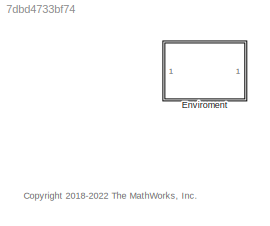
MODEL slx_7dbd4733bf74
KIND library
CONFIG AbsTol = auto
CONFIG EnableMultiTasking = off
CONFIG FixedStep = auto
CONFIG MaxStep = auto
CONFIG MinStep = auto
CONFIG RelTol = 1e-3
CONFIG SampleTimeConstraint = Unconstrained
CONFIG SolverName = VariableStepAuto
CONFIG StartTime = 0.0
CONFIG StopTime = 10.0
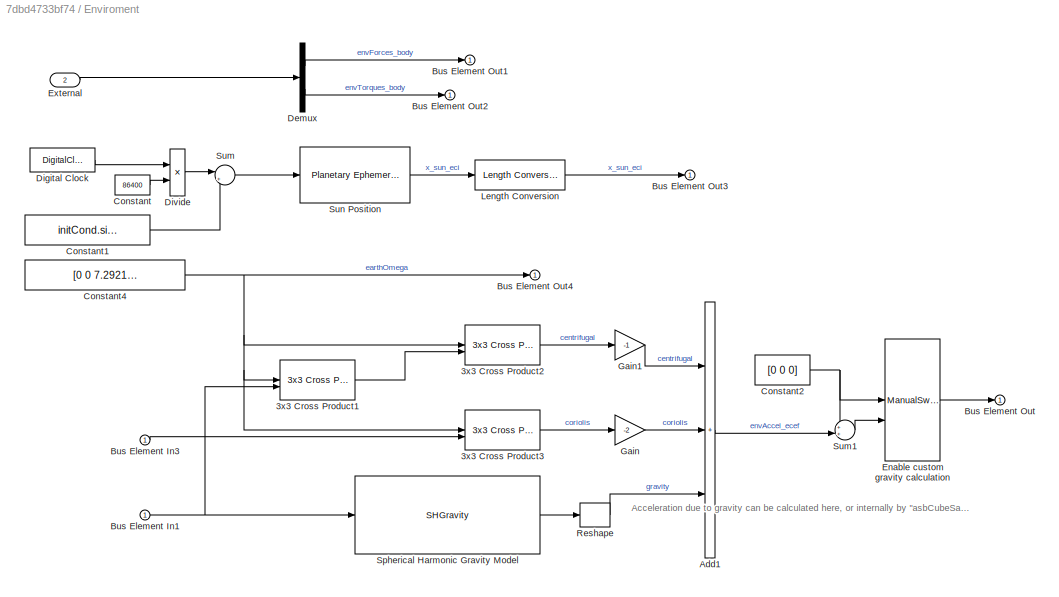
BLOCK [SubSystem] Enviroment
BLOCK [Reference] Enviroment/3x3 Cross Product1  REF=sharedutil/3x3 Cross Product
  SourceBlock = sharedutil/3x3 Cross Product
  SourceType = CrossProduct
BLOCK [Reference] Enviroment/3x3 Cross Product2  REF=sharedutil/3x3 Cross Product
  SourceBlock = sharedutil/3x3 Cross Product
  SourceType = CrossProduct
BLOCK [Reference] Enviroment/3x3 Cross Product3  REF=sharedutil/3x3 Cross Product
  SourceBlock = sharedutil/3x3 Cross Product
  SourceType = CrossProduct
BLOCK [Sum] Enviroment/Add1
  IconShape = rectangular
  Inputs = +++
BLOCK [Inport] Enviroment/Bus Element In1
BLOCK [Inport] Enviroment/Bus Element In3
BLOCK [Outport] Enviroment/Bus Element Out
  VectorParamsAs1DForOutWhenUnconnected = off
BLOCK [Outport] Enviroment/Bus Element Out1
  VectorParamsAs1DForOutWhenUnconnected = off
BLOCK [Outport] Enviroment/Bus Element Out2
  VectorParamsAs1DForOutWhenUnconnected = off
BLOCK [Outport] Enviroment/Bus Element Out3
  VectorParamsAs1DForOutWhenUnconnected = off
BLOCK [Outport] Enviroment/Bus Element Out4
  VectorParamsAs1DForOutWhenUnconnected = off
BLOCK [Constant] Enviroment/Constant
  Value = 86400
BLOCK [Constant] Enviroment/Constant1
  Value = initCond.simStartDate.JD
BLOCK [Constant] Enviroment/Constant2
  Value = [0 0 0]
BLOCK [Constant] Enviroment/Constant4
  Value = [0 0 7.292115146706979e-5]'
BLOCK [Demux] Enviroment/Demux
  Outputs = 2
BLOCK [DigitalClock] Enviroment/Digital Clock
  SampleTime = CubeSatTimeStep
BLOCK [Product] Enviroment/Divide
  Inputs = */
BLOCK [ManualSwitch] Enviroment/Enable custom gravity calculation
BLOCK [Inport] Enviroment/External
  Port = 2
BLOCK [Gain] Enviroment/Gain
  Gain = -2
BLOCK [Gain] Enviroment/Gain1
  Gain = -1
BLOCK [Reference] Enviroment/Length Conversion  REF=aerolibconvert2/Length Conversion
  SourceBlock = aerolibconvert2/Length Conversion
  SourceType = Length Conversion
BLOCK [Reshape] Enviroment/Reshape
BLOCK [SHGravity] Enviroment/Spherical Harmonic Gravity Model
  datafile = 'aerogmm2b.mat'
  degree = 20
BLOCK [Sum] Enviroment/Sum
  Inputs = |++
BLOCK [Sum] Enviroment/Sum1
  Inputs = ++|
BLOCK [Reference] Enviroment/Sun Position  REF=aerolibcelestial/Planetary Ephemeris
  SourceBlock = aerolibcelestial/Planetary Ephemeris
  SourceType = PlanetaryEphemeris
ANNOTATION (root): <copyright redacted>
ANNOTATION Enviroment: Acceleration due to gravity can be calculated here, or internally by "asbCubeSat/Vehicle Model/Vehicle Dynamics/Spacecraft Dynamics". To disable calculation by the Spacecraft Dynamics block, set block parameter "Gravitational Potential Model" to "None".
LINE Enviroment/3x3 Cross Product1:1 -> Enviroment/3x3 Cross Product2:2
LINE Enviroment/3x3 Cross Product2:1 -> Enviroment/Gain1:1
LINE Enviroment/3x3 Cross Product3:1 -> Enviroment/Gain:1
LINE Enviroment/Add1:1 -> Enviroment/Sum1:2
NET Enviroment/Bus Element In1:1 -> Enviroment/3x3 Cross Product1:2, Enviroment/Spherical Harmonic Gravity Model:1
LINE Enviroment/Bus Element In3:1 -> Enviroment/3x3 Cross Product3:2
LINE Enviroment/Constant1:1 -> Enviroment/Sum:2
NET Enviroment/Constant2:1 -> Enviroment/Enable custom gravity calculation:1, Enviroment/Sum1:1
NET Enviroment/Constant4:1 -> Enviroment/3x3 Cross Product1:1, Enviroment/3x3 Cross Product2:1, Enviroment/3x3 Cross Product3:1, Enviroment/Bus Element Out4:1
LINE Enviroment/Constant:1 -> Enviroment/Divide:2
LINE Enviroment/Demux:1 -> Enviroment/Bus Element Out1:1
LINE Enviroment/Demux:2 -> Enviroment/Bus Element Out2:1
LINE Enviroment/Digital Clock:1 -> Enviroment/Divide:1
LINE Enviroment/Divide:1 -> Enviroment/Sum:1
LINE Enviroment/Enable custom gravity calculation:1 -> Enviroment/Bus Element Out:1
LINE Enviroment/External:1 -> Enviroment/Demux:1
LINE Enviroment/Gain1:1 -> Enviroment/Add1:1
LINE Enviroment/Gain:1 -> Enviroment/Add1:2
LINE Enviroment/Length Conversion:1 -> Enviroment/Bus Element Out3:1
LINE Enviroment/Reshape:1 -> Enviroment/Add1:3
LINE Enviroment/Spherical Harmonic Gravity Model:1 -> Enviroment/Reshape:1
LINE Enviroment/Sum1:1 -> Enviroment/Enable custom gravity calculation:2
LINE Enviroment/Sum:1 -> Enviroment/Sun Position:1
LINE Enviroment/Sun Position:1 -> Enviroment/Length Conversion:1
note: NET lines group one-source signal fan-out (src -> all destinations, sorted); 1:1 wires keep LINE
